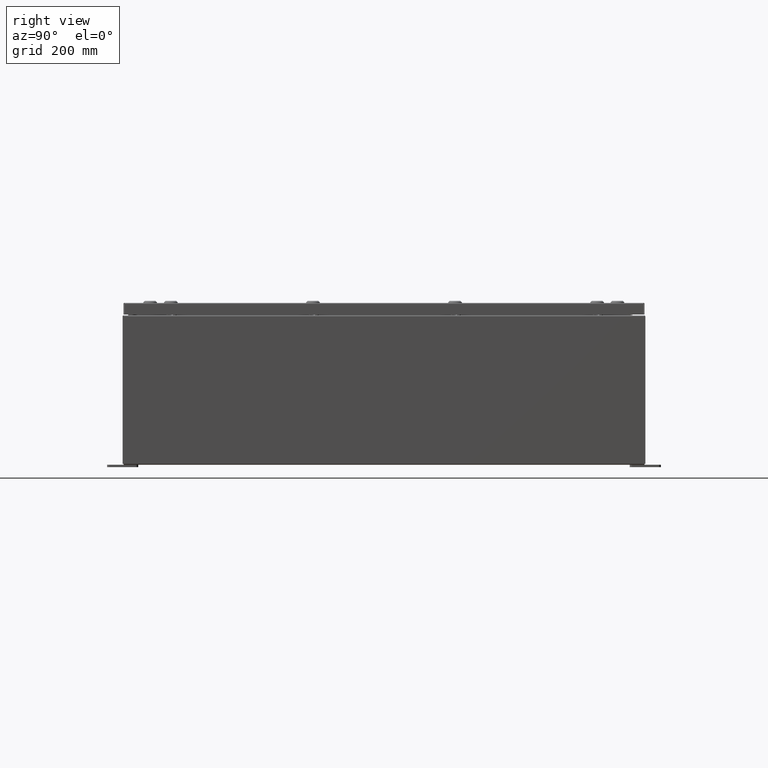
[diagram: clean part render]
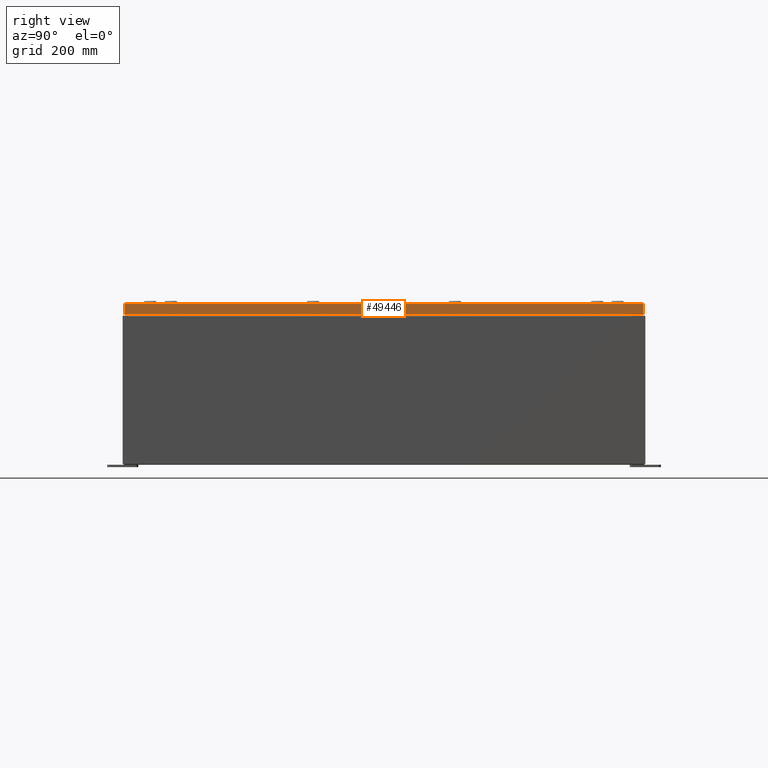
[diagram: same view with one face highlighted and labeled with its STEP entity id]
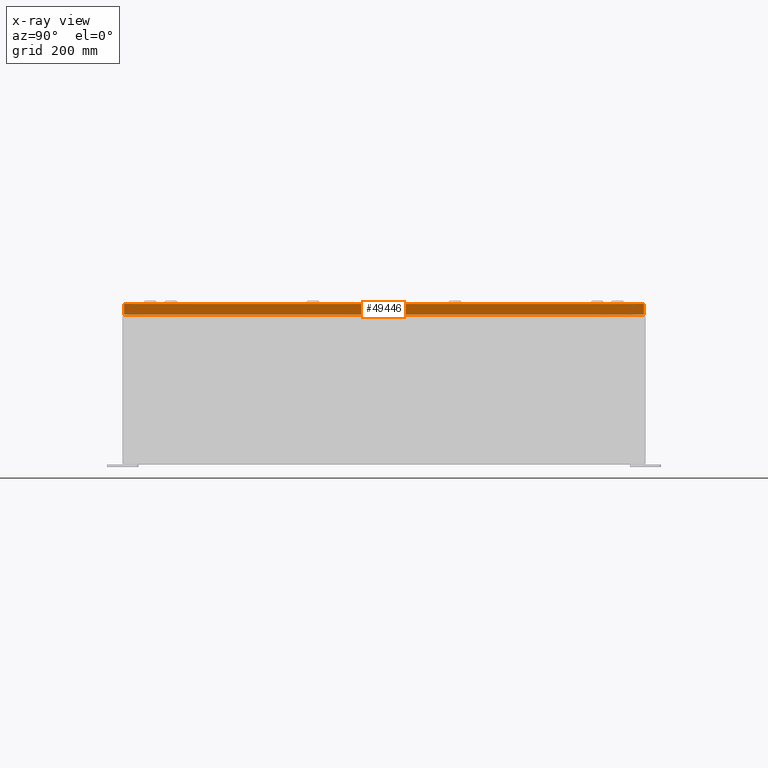
[diagram: x-ray of the same camera — body ghosted, the highlighted face saturated]
A machine part, right view. The second image highlights one B-rep face of the part: STEP entity #49446.
The next image is the same camera in x-ray: the body ghosted, the highlighted face saturated — about 0% of this face is hidden behind the body in this view.
In plain terms, the highlighted planar face has unit normal (1, 0, 0).
Its self-contained STEP definition (entity closure, byte-faithful):
#540 = CARTESIAN_POINT ( 'NONE',  ( 17.93749999999999600, 20.84865786437627800, -0.9376999999999997600 ) ) ;
#3535 = EDGE_CURVE ( 'NONE', #8500, #41241, #36830, .T. ) ;
#3630 = DIRECTION ( 'NONE',  ( -2.532419924601866100E-015, -6.982962677686267500E-015, 1.000000000000000000 ) ) ;
#3892 = CARTESIAN_POINT ( 'NONE',  ( 17.93749999999999600, -20.84865786437627100, -0.08770000000000008300 ) ) ;
#6300 = CARTESIAN_POINT ( 'NONE',  ( 17.93749999999999600, 0.0000000000000000000, 4.568609605355753500E-014 ) ) ;
#6789 = DIRECTION ( 'NONE',  ( -2.532419924601866100E-015, -6.982962677686267500E-015, 1.000000000000000000 ) ) ;
#6924 = EDGE_LOOP ( 'NONE', ( #44710, #26432, #42776, #65481 ) ) ;
#8500 = VERTEX_POINT ( 'NONE', #540 ) ;
#12065 = DIRECTION ( 'NONE',  ( 2.532419924601866100E-015, 0.0000000000000000000, -1.000000000000000000 ) ) ;
#13560 = EDGE_CURVE ( 'NONE', #8500, #40569, #39155, .T. ) ;
#14708 = LINE ( 'NONE', #52512, #16367 ) ;
#16367 = VECTOR ( 'NONE', #68353, 39.37007874015748100 ) ;
#16717 = VECTOR ( 'NONE', #6789, 39.37007874015748100 ) ;
#22491 = PLANE ( 'NONE',  #41408 ) ;
#22802 = VECTOR ( 'NONE', #3630, 39.37007874015748100 ) ;
#23234 = VERTEX_POINT ( 'NONE', #3892 ) ;
#24638 = CARTESIAN_POINT ( 'NONE',  ( 17.93749999999999600, -20.84865786437626800, -0.9376999999999997600 ) ) ;
#26432 = ORIENTED_EDGE ( 'NONE', *, *, #13560, .F. ) ;
#30374 = FACE_OUTER_BOUND ( 'NONE', #6924, .T. ) ;
#36830 = LINE ( 'NONE', #45737, #22802 ) ;
#38516 = EDGE_CURVE ( 'NONE', #41241, #23234, #14708, .T. ) ;
#39155 = LINE ( 'NONE', #64347, #67371 ) ;
#40569 = VERTEX_POINT ( 'NONE', #24638 ) ;
#41241 = VERTEX_POINT ( 'NONE', #47612 ) ;
#41408 = AXIS2_PLACEMENT_3D ( 'NONE', #6300, #43739, #12065 ) ;
#42776 = ORIENTED_EDGE ( 'NONE', *, *, #3535, .T. ) ;
#43558 = CARTESIAN_POINT ( 'NONE',  ( 17.93749999999999600, -20.84865786437627100, -0.07469999999999980800 ) ) ;
#43739 = DIRECTION ( 'NONE',  ( 1.000000000000000000, 0.0000000000000000000, 2.532419924601866100E-015 ) ) ;
#44710 = ORIENTED_EDGE ( 'NONE', *, *, #65281, .F. ) ;
#45737 = CARTESIAN_POINT ( 'NONE',  ( 17.93749999999999600, 20.84865786437627100, 1.912714958003473400E-013 ) ) ;
#47612 = CARTESIAN_POINT ( 'NONE',  ( 17.93749999999999600, 20.84865786437626800, -0.08770000000000008300 ) ) ;
#49446 = ADVANCED_FACE ( 'NONE', ( #30374 ), #22491, .T. ) ;
#52512 = CARTESIAN_POINT ( 'NONE',  ( 17.93749999999999600, 0.0000000000000000000, -0.08770000000000008300 ) ) ;
#53865 = DIRECTION ( 'NONE',  ( 0.0000000000000000000, -1.000000000000000000, 0.0000000000000000000 ) ) ;
#58982 = LINE ( 'NONE', #43558, #16717 ) ;
#64347 = CARTESIAN_POINT ( 'NONE',  ( 17.93749999999999600, -20.93750000000000000, -0.9376999999999997600 ) ) ;
#65281 = EDGE_CURVE ( 'NONE', #40569, #23234, #58982, .T. ) ;
#65481 = ORIENTED_EDGE ( 'NONE', *, *, #38516, .T. ) ;
#67371 = VECTOR ( 'NONE', #53865, 39.37007874015748100 ) ;
#68353 = DIRECTION ( 'NONE',  ( 0.0000000000000000000, -1.000000000000000000, 0.0000000000000000000 ) ) ;